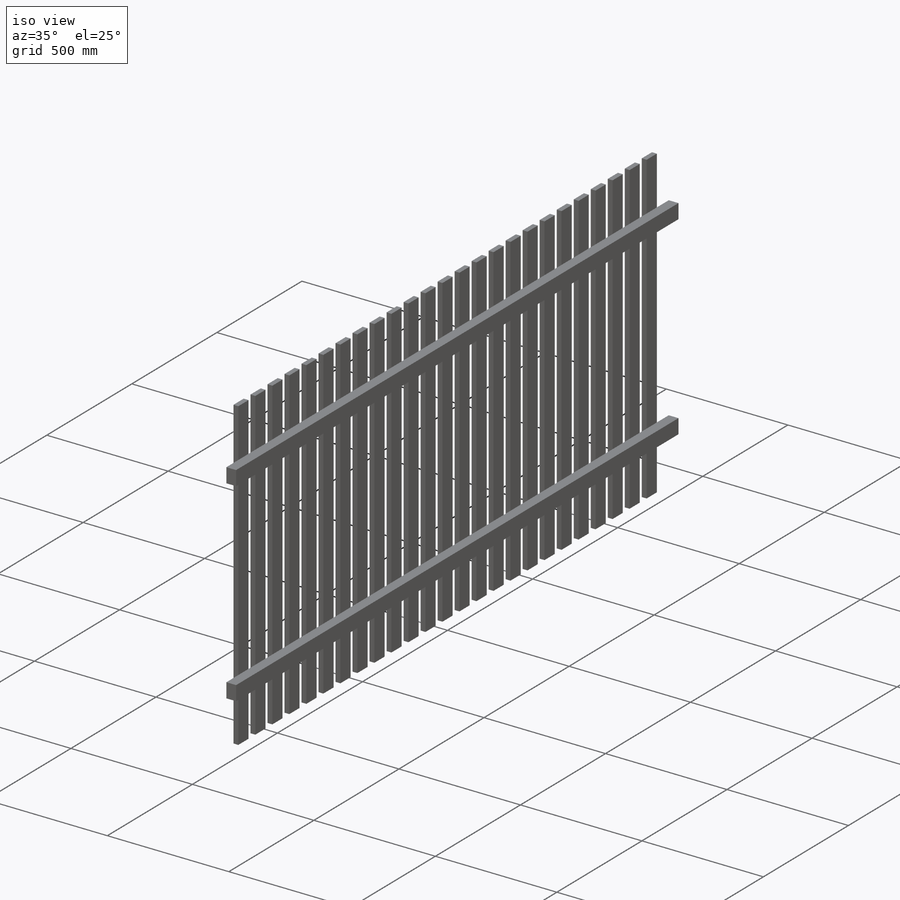
[diagram: iso view]
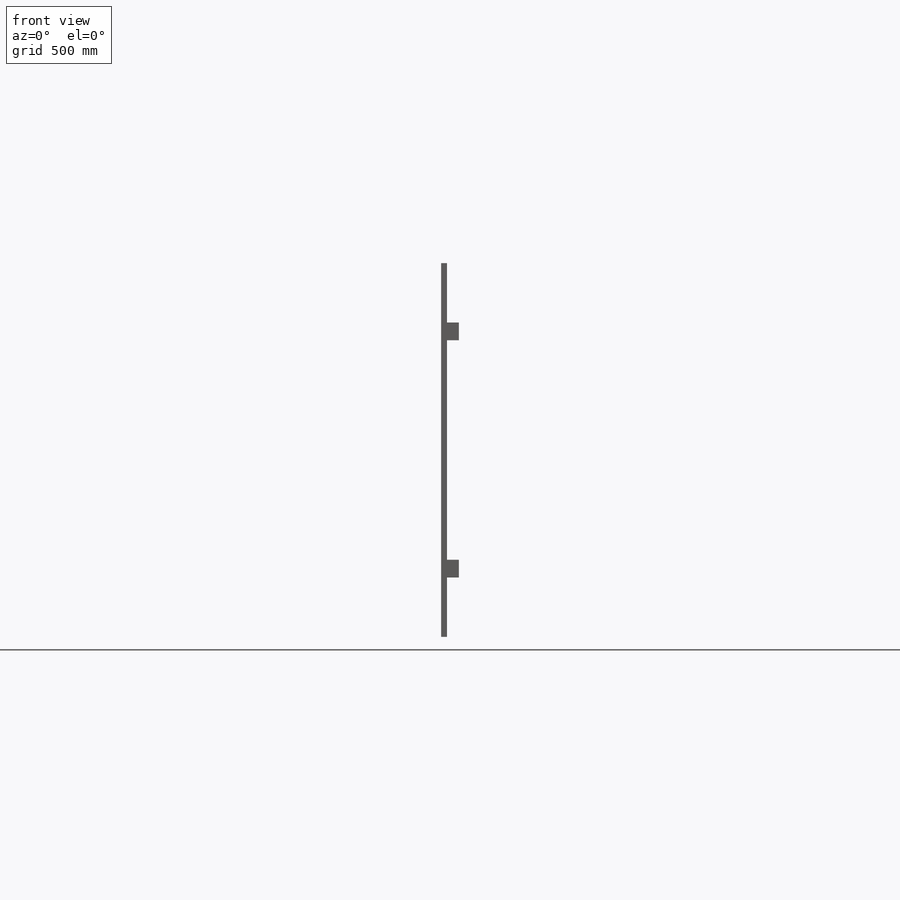
[diagram: front view]
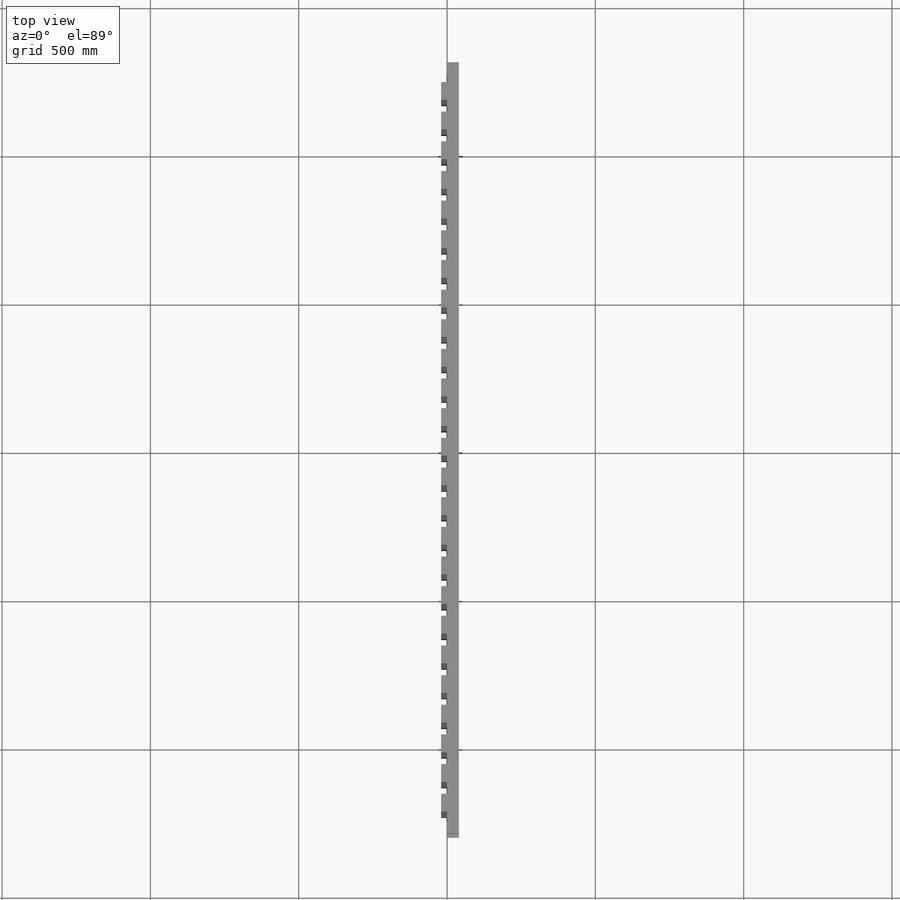
[diagram: top view]
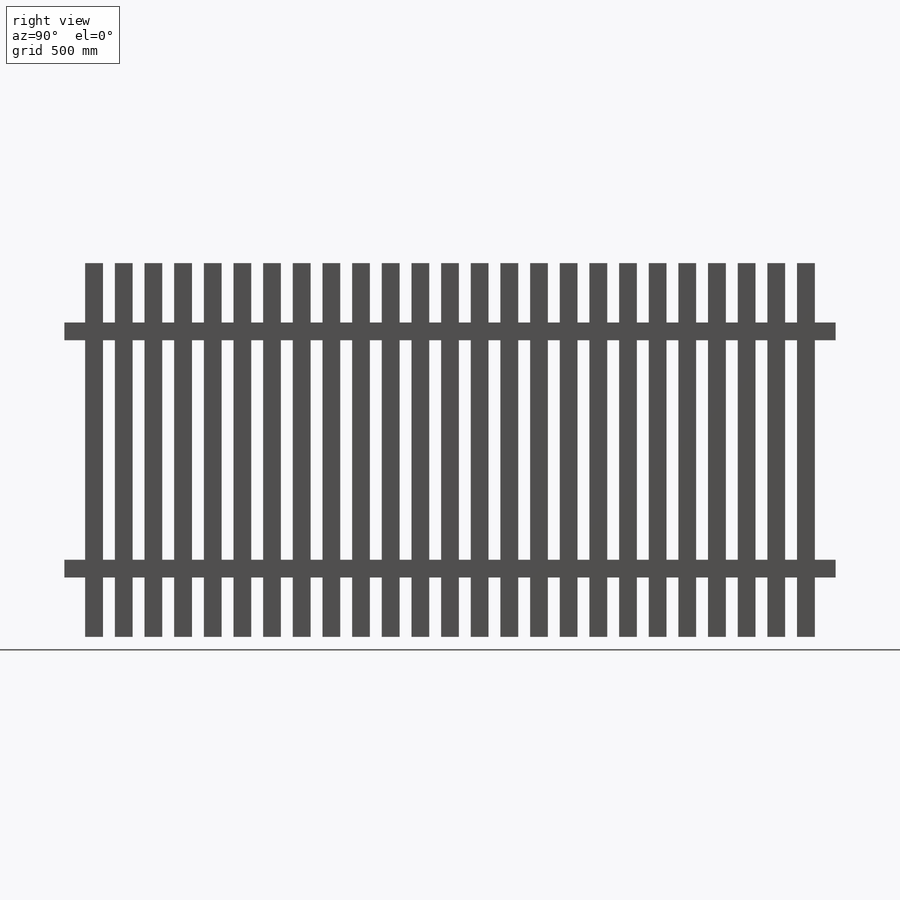
[diagram: right view]
SOLIDWORKS PART (.sldprt)
format: sldprt  version: not decoded by parser v0  size: 351,232 bytes
history: native  units: mm
features: plane x3, sketch x2, extrude x2, pattern_linear x2, material x1 (+8 scaffold rows collapsed)
feature tree (18):
  scaffold x8  (default folders/planes/origin — collapsed)
  material  "Material <nicht festgelegt>"
  plane  "Vorderansicht"
  plane  "Draufsicht"
  plane  "Seitenansicht"
  sketch  "Skizze1"  dims[D1=40.0mm D2=60.0mm]
  extrude  "Aufsatz-Linear austragen1"  Depth=2600mm
  pattern_linear  "Lineares Muster1"  Count1=2 Count2=1 Spacing1=800mm Spacing2=10mm
  sketch  "Skizze2"  dims[D1=200.0mm D2=60.0mm D3=200.0mm]
  extrude  "Aufsatz-Linear austragen2"  Depth=20mm
  pattern_linear  "Lineares Muster2"  Count1=13 Count2=13 Spacing1=100mm Spacing2=100mm
decode coverage: 6 of 6 modeling features carry decoded parameters
note: suppression state not decoded; provenance and decode notes live in map.json
